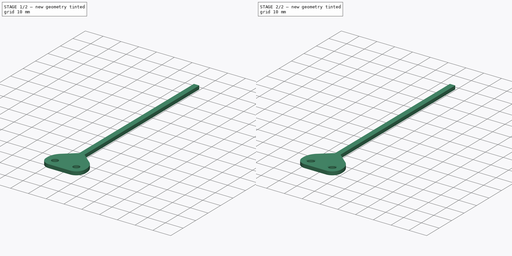
[diagram: build sequence overview — one tinted view per stage of 2, left to right]
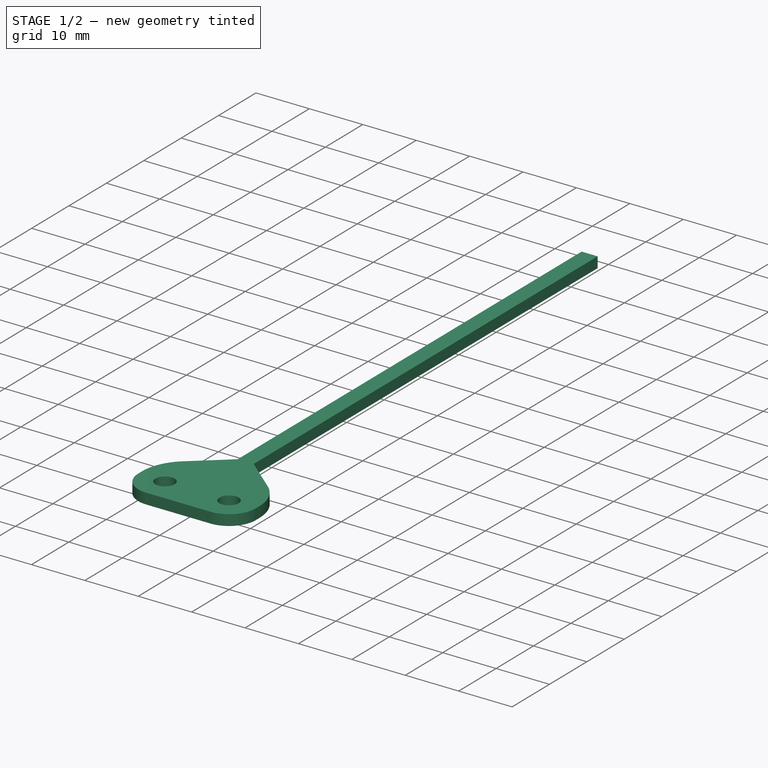
[diagram: stage 1 of 2 — iso view after this stage's code; geometry added in this stage tinted green]
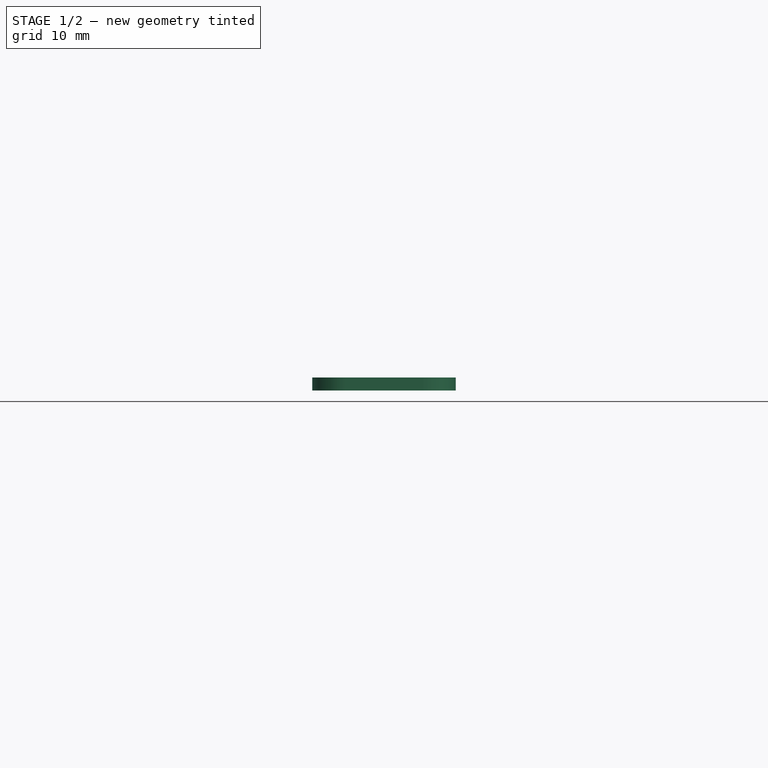
[diagram: stage 1 of 2 — front view after this stage's code; geometry added in this stage tinted green]
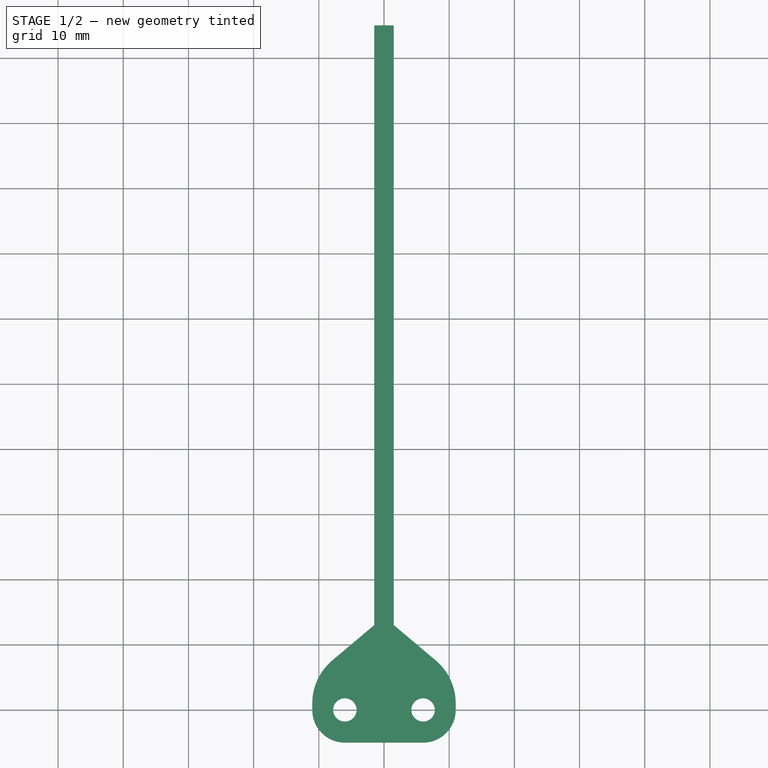
[diagram: stage 1 of 2 — top view after this stage's code; geometry added in this stage tinted green]
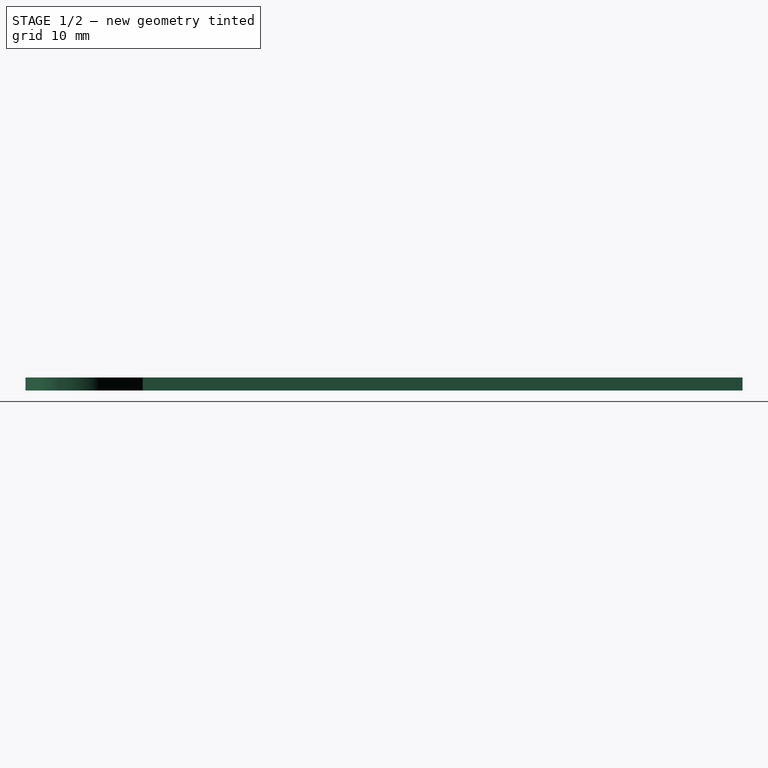
[diagram: stage 1 of 2 — right view after this stage's code; geometry added in this stage tinted green]
FCSTD DOCUMENT  (FreeCAD 0.20R29177 +426 (Git))
Label: RollerCalInside
License: All rights reserved
LicenseURL: http://en.wikipedia.org/wiki/All_rights_reserved
objects: Sketcher::SketchObject×1, PartDesign::Pad×1, PartDesign::Chamfer×1, PartDesign::Body×1
note: 6 computed .brp shape members not serialized (recipe doc carries the construction recipe); baked Part::Feature solids carry a one-line shape summary decoded from their .brp

FEATURE [Sketcher::SketchObject] Sketch
  FullyConstrained = true
  MapMode = 5
  Support = -> [XY_Plane]
  sketch-geometry (27):
    g0: GeomPoint X=0 Y=0 Z=0
    g1: LineSegment StartX=11 StartY=-1.2e-15 StartZ=0 EndX=11 EndY=1 EndZ=0
    g2: LineSegment StartX=-11 StartY=1 StartZ=0 EndX=-11 EndY=7e-16 EndZ=0
    g3: LineSegment StartX=-6 StartY=-5 StartZ=0 EndX=6 EndY=-5 EndZ=0
    g4: GeomPoint X=0 Y=0 Z=0
    g5: LineSegment StartX=1.5 StartY=5 StartZ=0 EndX=-1.5 EndY=5 EndZ=0
    g6: LineSegment StartX=-1.5 StartY=105 StartZ=0 EndX=1.5 EndY=105 EndZ=0
    g7: GeomPoint X=0 Y=55 Z=0
    g8: LineSegment StartX=-1.5 StartY=5 StartZ=0 EndX=-11 EndY=5 EndZ=0
    g9: LineSegment StartX=11 StartY=5 StartZ=0 EndX=1.5 EndY=5 EndZ=0
    g10: LineSegment StartX=1.5 StartY=105 StartZ=0 EndX=1.5 EndY=13 EndZ=0
    g11: LineSegment StartX=1.5 StartY=13 StartZ=0 EndX=1.5 EndY=5 EndZ=0
    g12: LineSegment StartX=-1.5 StartY=5 StartZ=0 EndX=-1.5 EndY=13 EndZ=0
    g13: LineSegment StartX=-1.5 StartY=13 StartZ=0 EndX=-1.5 EndY=105 EndZ=0
    g14: LineSegment StartX=-1.5 StartY=13 StartZ=0 EndX=-7.94036 EndY=7.57654 EndZ=0
    g15: LineSegment StartX=1.5 StartY=13 StartZ=0 EndX=7.94036 EndY=7.57654 EndZ=0
    g16: Circle CenterX=-6 CenterY=0 CenterZ=0 NormalX=0 NormalY=0 NormalZ=1 AngleXU=0 Radius=1.8
    g17: Circle CenterX=6 CenterY=0 CenterZ=0 NormalX=0 NormalY=0 NormalZ=1 AngleXU=0 Radius=1.8
    g18: ArcOfCircle CenterX=6 CenterY=0 CenterZ=0 NormalX=0 NormalY=0 NormalZ=1 AngleXU=0 Radius=5 StartAngle=4.71239 EndAngle=6.28319
    g19: GeomPoint X=11 Y=-5 Z=0
    g20: ArcOfCircle CenterX=-6 CenterY=0 CenterZ=0 NormalX=0 NormalY=0 NormalZ=1 AngleXU=0 Radius=5 StartAngle=3.14159 EndAngle=4.71239
    g21: GeomPoint X=-11 Y=-5 Z=0
    g22: ArcOfCircle CenterX=2.40221 CenterY=1 CenterZ=0 NormalX=0 NormalY=0 NormalZ=1 AngleXU=0 Radius=8.59779 StartAngle=-8.9e-15 EndAngle=0.870903
    g23: GeomPoint X=11 Y=5 Z=0
    g24: ArcOfCircle CenterX=-2.40221 CenterY=1 CenterZ=0 NormalX=0 NormalY=0 NormalZ=1 AngleXU=0 Radius=8.59779 StartAngle=2.27069 EndAngle=3.14159
    g25: GeomPoint X=-11 Y=5 Z=0
    g26: LineSegment StartX=-2.40221 StartY=1 StartZ=0 EndX=2.40221 EndY=1 EndZ=0
  constraints (61):
    c: Coincident(g0,g-1)
    c: Coincident(g23,g9)
    c: Coincident(g8,g25)
    c: Horizontal(g3)
    c: Vertical(g1)
    c: Vertical(g2)
    c: Symmetric(g8,g19,g4)
    c: Coincident(g4,g0)
    c: Coincident(g11,g5)
    c: Coincident(g5,g12)
    c: Coincident(g13,g6)
    c: Coincident(g6,g10)
    c: Horizontal(g5)
    c: Horizontal(g6)
    c: Symmetric(g5,g10,g7)
    c: PointOnObject(g7,g-2)
    c: Horizontal(g8)
    c: Horizontal(g9)
    c: Coincident(g11,g9)
    c: Coincident(g8,g12)
    c: DistanceX(g6,g6) = 3
    c: DistanceY(g12,g13) = 100
    c: Coincident(g10,g11)
    c: Vertical(g10)
    c: Vertical(g11)
    c: Coincident(g12,g13)
    c: Vertical(g12)
    c: Vertical(g13)
    c: Equal(g12,g11)
    c: Coincident(g14,g12)
    c: Coincident(g15,g10)
    c: DistanceY(g12,g12) = 8
    c: PointOnObject(g16,g-1)
    c: Equal(g17,g16)
    c: Diameter(g17) = 3.6
    c: Symmetric(g17,g16,g0)
    c: DistanceX(g16,g17) = 12
    c: DistanceX(g17,g19) = 5
    c: DistanceY(g19,g17) = 5
    c: PointOnObject(g19,g1)
    c: PointOnObject(g19,g3)
    c: Tangent(g1,g18) = -1.5708
    c: Tangent(g3,g18) = -1.5708
    c: PointOnObject(g21,g3)
    c: PointOnObject(g21,g2)
    c: Tangent(g3,g20) = -1.5708
    c: Tangent(g2,g20) = -1.5708
    c: PointOnObject(g2,g-1)
    c: PointOnObject(g1,g-1)
    c: PointOnObject(g23,g1)
    c: PointOnObject(g23,g15)
    c: Tangent(g1,g22) = -1.5708
    c: Tangent(g15,g22) = 1.5708
    c: PointOnObject(g25,g14)
    c: PointOnObject(g25,g2)
    c: Tangent(g14,g24) = -1.5708
    c: Tangent(g2,g24) = -1.5708
    c: Coincident(g26,g24)
    c: Coincident(g26,g22)
    c: Horizontal(g26)
    c: DistanceY(g0,g22) = 1
FEATURE [PartDesign::Pad] Pad
  Direction = (0,0,1)
  Length = 2
  Length2 = 10
  Profile = -> Sketch
  ReferenceAxis = -> Sketch [N_Axis]
  Type = 0
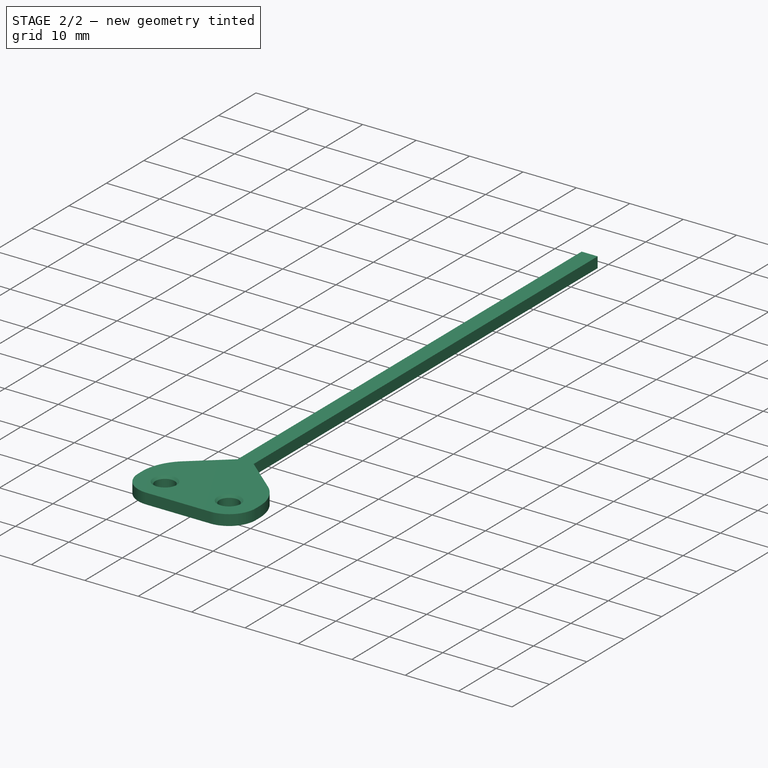
[diagram: stage 2 of 2 — iso view after this stage's code; geometry added in this stage tinted green]
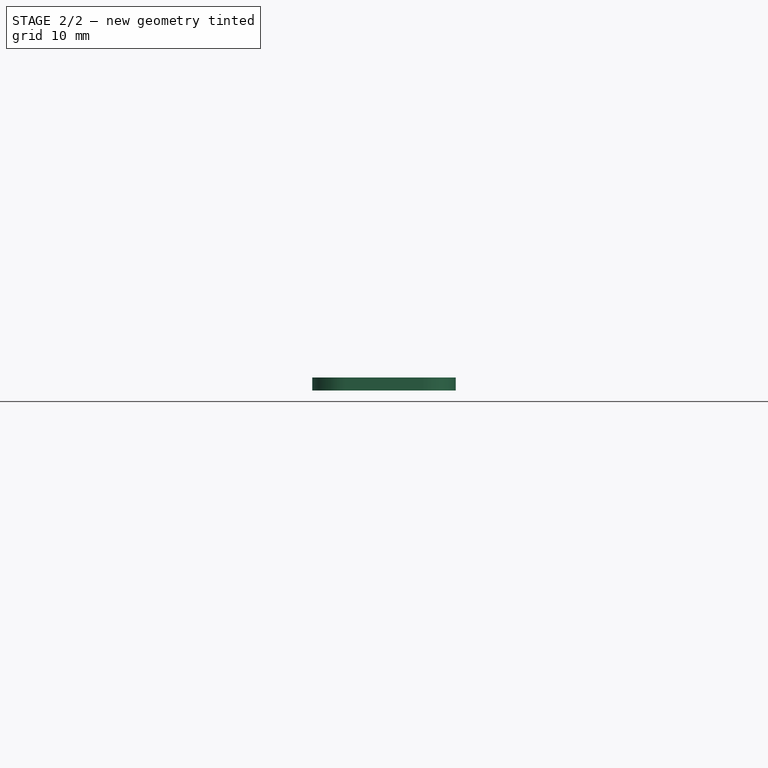
[diagram: stage 2 of 2 — front view after this stage's code; geometry added in this stage tinted green]
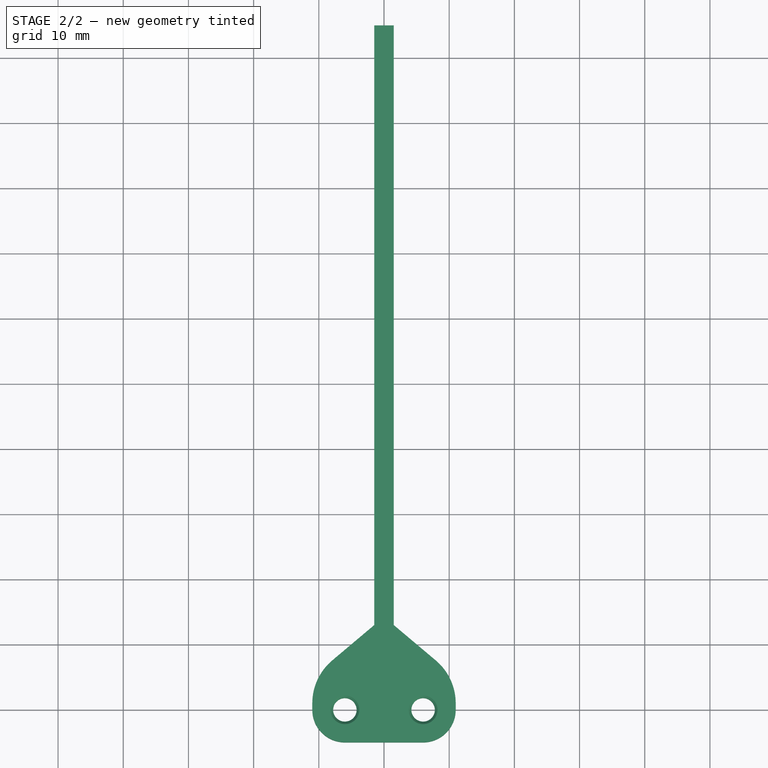
[diagram: stage 2 of 2 — top view after this stage's code; geometry added in this stage tinted green]
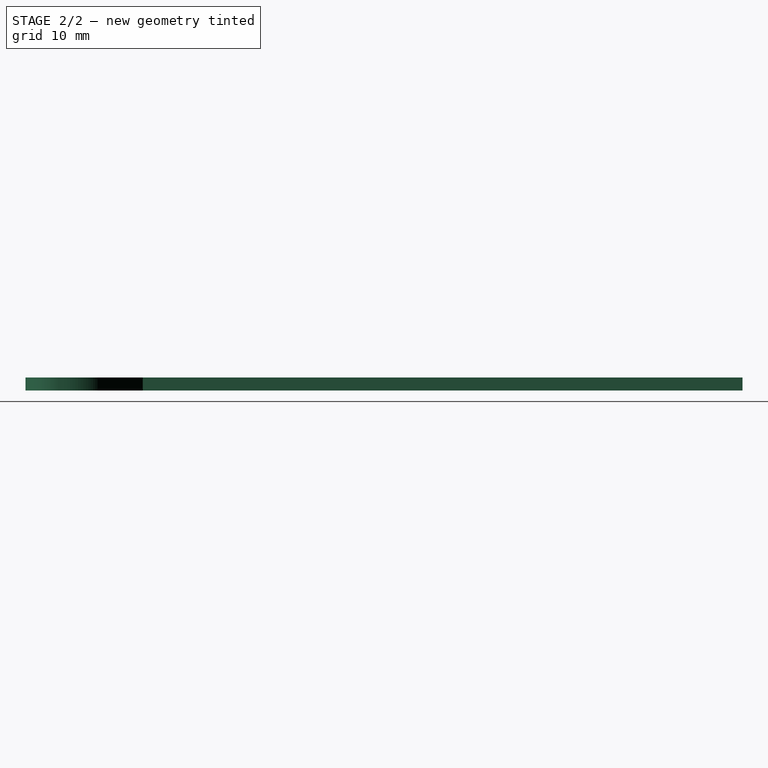
[diagram: stage 2 of 2 — right view after this stage's code; geometry added in this stage tinted green]
FEATURE [PartDesign::Chamfer] Chamfer
  Angle = 45
  Base = -> Pad [Edge42,Edge39]
  BaseFeature = -> Pad
  ChamferType = 0
  FlipDirection = false
  Size = 0.4
  Size2 = 1
  SupportTransform = false
  UseAllEdges = false
FEATURE [PartDesign::Body] Body
  Group = -> [Sketch,Pad,Chamfer]
  Origin = -> Origin
  Tip = -> Chamfer
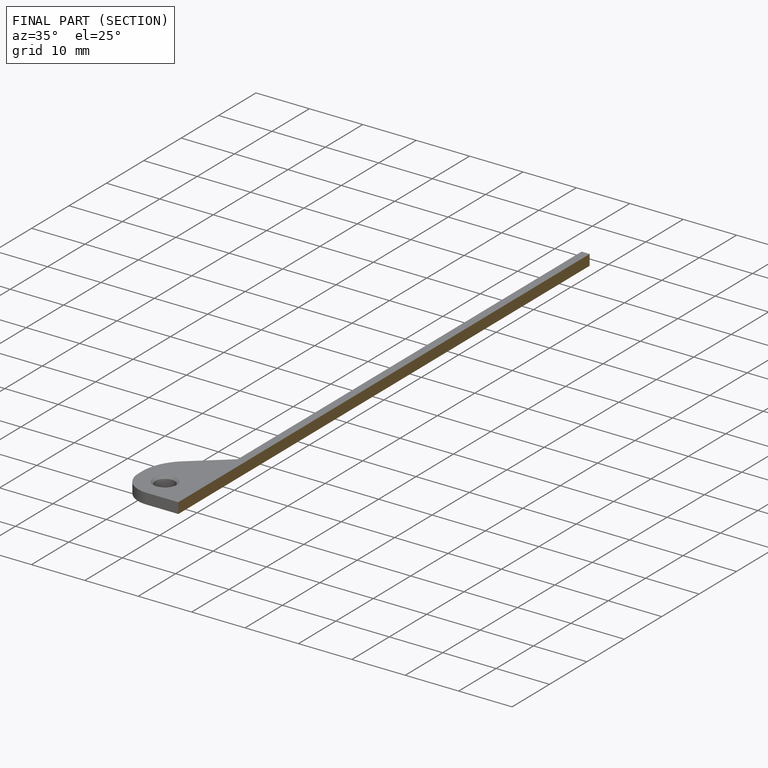
[diagram: finished part — half-section view (interior)]
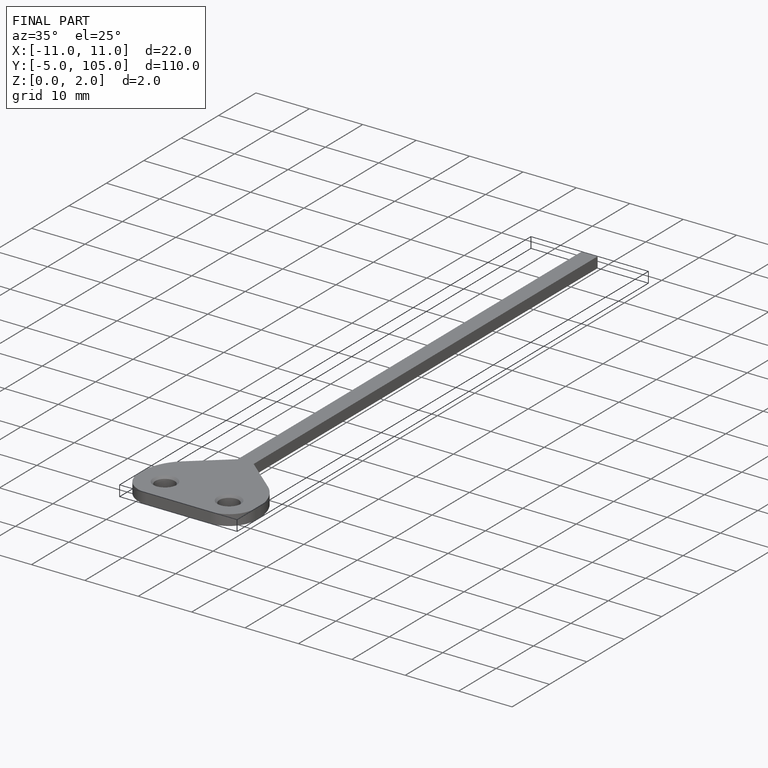
[diagram: finished part — iso view with bounding-box wireframe]
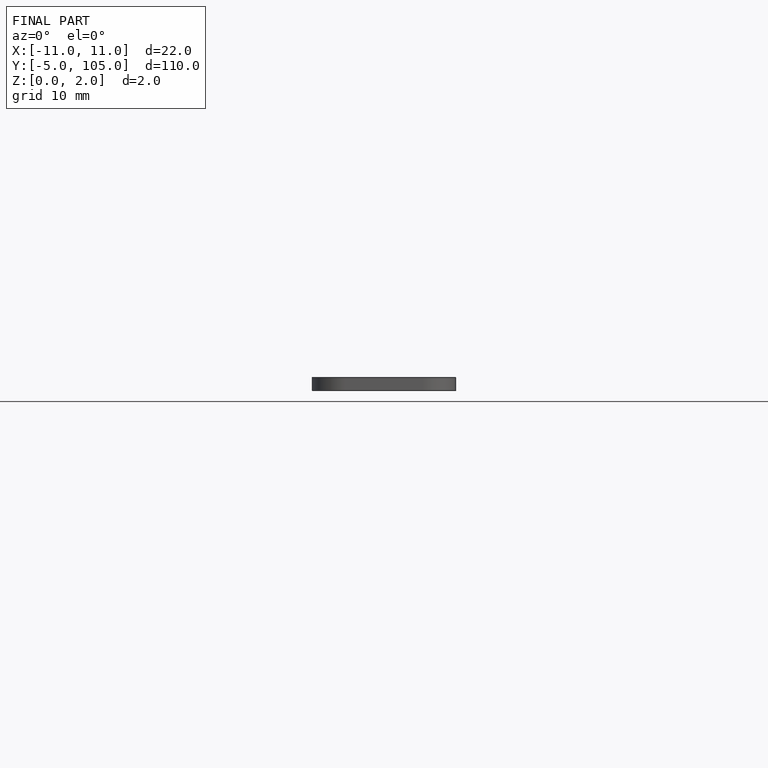
[diagram: finished part — front view with bounding-box wireframe]
